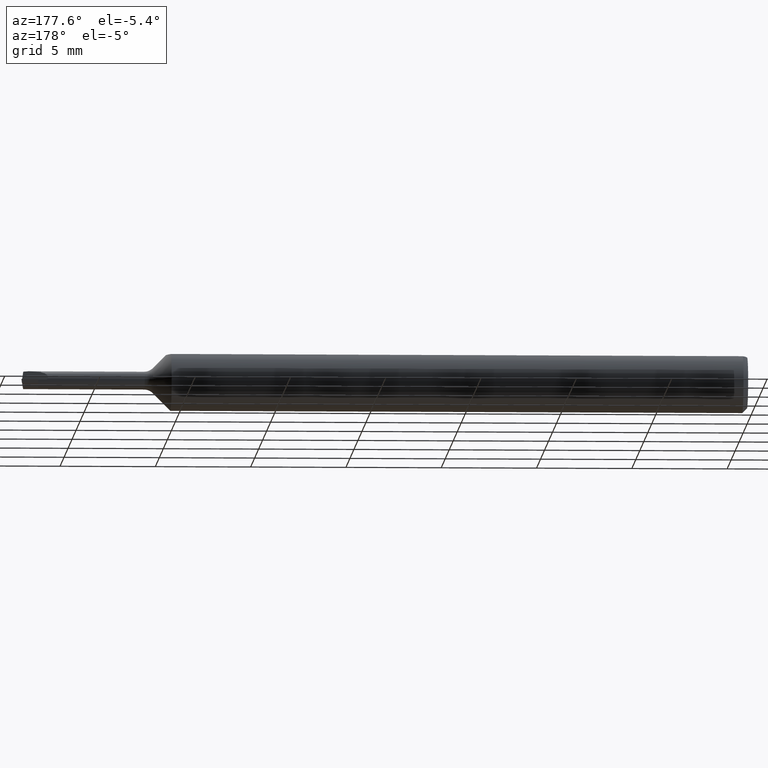
[diagram: clean part render]
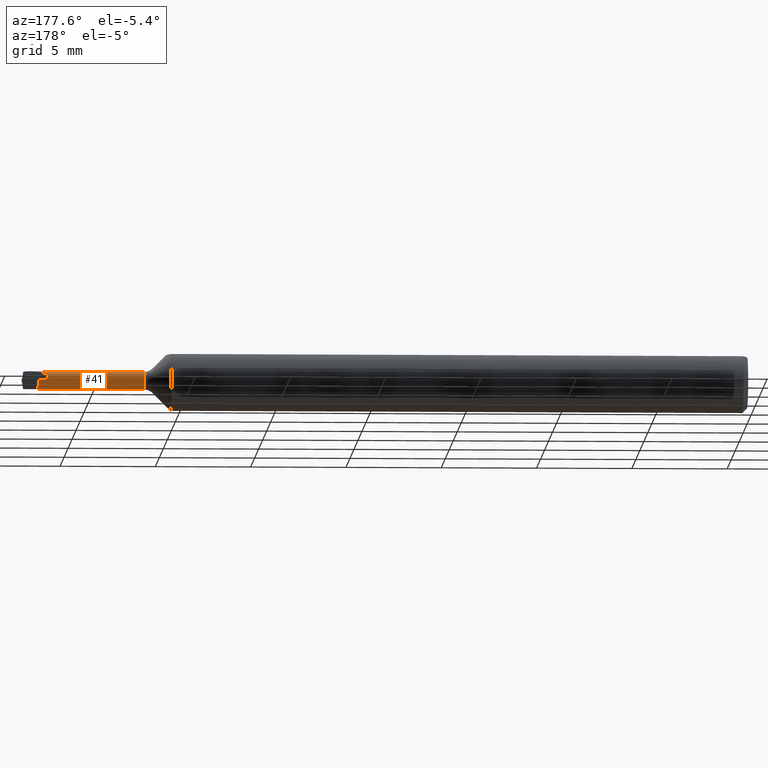
[diagram: same view with one face highlighted and labeled with its STEP entity id]
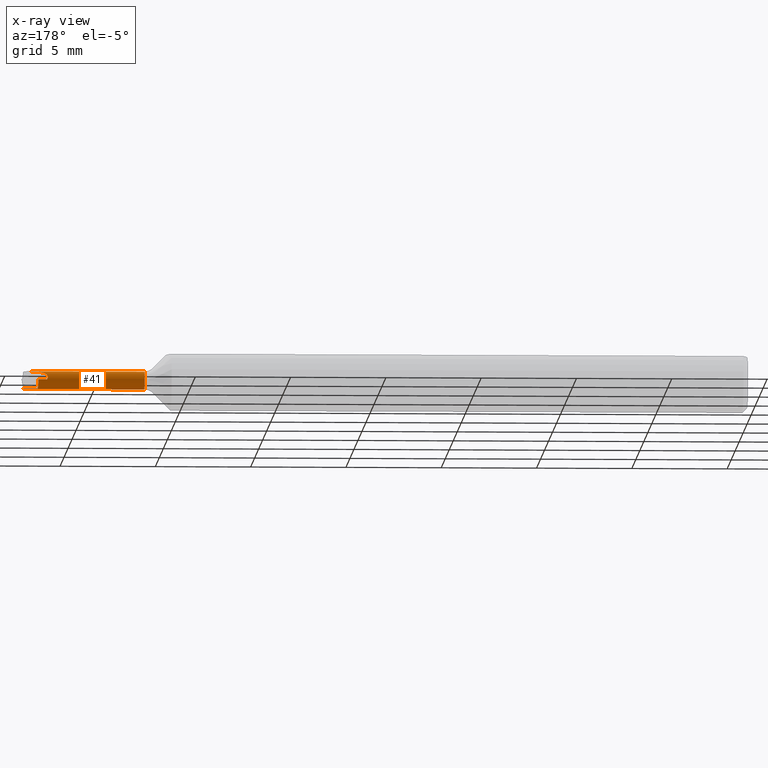
[diagram: x-ray of the same camera — body ghosted, the highlighted face saturated]
A machine part, auxiliary view. The second image highlights one B-rep face of the part: STEP entity #41.
The next image is the same camera in x-ray: the body ghosted, the highlighted face saturated — about 0% of this face is hidden behind the body in this view.
In plain terms, the highlighted cylindrical surface (edge-blend (fillet) strip) has radius 0.4699 mm, axis along (-1, -0, -0).
Its self-contained STEP definition (entity closure, byte-faithful):
#6 = CIRCLE ( 'NONE', #126, 0.01849999999999999908 ) ;
#12 = LINE ( 'NONE', #172, #50 ) ;
#18 = ORIENTED_EDGE ( 'NONE', *, *, #99, .T. ) ;
#19 = CARTESIAN_POINT ( 'NONE',  ( 1.245355339059327493, 0.000000000000000000, 0.000000000000000000 ) ) ;
#21 = EDGE_CURVE ( 'NONE', #289, #505, #49, .T. ) ;
#22 = ORIENTED_EDGE ( 'NONE', *, *, #72, .T. ) ;
#41 = ADVANCED_FACE ( 'NONE', ( #543 ), #400, .T. ) ;
#49 = LINE ( 'NONE', #438, #309 ) ;
#50 = VECTOR ( 'NONE', #102, 39.37007874015748143 ) ;
#72 = EDGE_CURVE ( 'NONE', #582, #630, #560, .T. ) ;
#93 = DIRECTION ( 'NONE',  ( 1.000000000000000000, 0.000000000000000000, 0.000000000000000000 ) ) ;
#96 = CARTESIAN_POINT ( 'NONE',  ( 0.000000000000000000, 0.000000000000000000, 0.000000000000000000 ) ) ;
#99 = EDGE_CURVE ( 'NONE', #237, #289, #296, .T. ) ;
#100 = CARTESIAN_POINT ( 'NONE',  ( 1.495388239854692269, 0.001619057209963981015, -0.01849999999999998521 ) ) ;
#102 = DIRECTION ( 'NONE',  ( -1.000000000000000000, -0.000000000000000000, -0.000000000000000000 ) ) ;
#113 = VERTEX_POINT ( 'NONE', #540 ) ;
#115 = DIRECTION ( 'NONE',  ( 0.000000000000000000, 0.000000000000000000, 1.000000000000000000 ) ) ;
#118 = EDGE_CURVE ( 'NONE', #630, #113, #12, .T. ) ;
#121 = ORIENTED_EDGE ( 'NONE', *, *, #21, .T. ) ;
#125 = EDGE_LOOP ( 'NONE', ( #22, #273, #209, #574, #18, #121, #516, #134 ) ) ;
#126 = AXIS2_PLACEMENT_3D ( 'NONE', #282, #370, #478 ) ;
#134 = ORIENTED_EDGE ( 'NONE', *, *, #234, .F. ) ;
#142 = DIRECTION ( 'NONE',  ( -1.000000000000000000, -0.000000000000000000, -0.000000000000000000 ) ) ;
#148 = CARTESIAN_POINT ( 'NONE',  ( 1.438508876927481195, 0.01849999999999999908, 0.01083704909609776133 ) ) ;
#149 = CARTESIAN_POINT ( 'NONE',  ( 1.483333815684383605, 0.000000000000000000, 0.01849999999999999215 ) ) ;
#172 = CARTESIAN_POINT ( 'NONE',  ( 0.000000000000000000, 2.265596578422602268E-18, -0.01849999999999999215 ) ) ;
#174 = EDGE_CURVE ( 'NONE', #237, #426, #565, .T. ) ;
#186 = DIRECTION ( 'NONE',  ( -1.000000000000000000, -0.000000000000000000, -0.000000000000000000 ) ) ;
#187 = CARTESIAN_POINT ( 'NONE',  ( 1.245355339059327493, 0.000000000000000000, 0.01849999999999998174 ) ) ;
#209 = ORIENTED_EDGE ( 'NONE', *, *, #503, .F. ) ;
#210 = DIRECTION ( 'NONE',  ( -1.000000000000000000, 0.000000000000000000, 0.000000000000000000 ) ) ;
#212 = CARTESIAN_POINT ( 'NONE',  ( 1.560200597524541877, 0.004788152334396648772, -0.01786962778634774984 ) ) ;
#234 = EDGE_CURVE ( 'NONE', #582, #486, #452, .T. ) ;
#237 = VERTEX_POINT ( 'NONE', #506 ) ;
#256 = CARTESIAN_POINT ( 'NONE',  ( 0.000000000000000000, 0.000000000000000000, 0.01849999999999999215 ) ) ;
#260 = AXIS2_PLACEMENT_3D ( 'NONE', #96, #142, #499 ) ;
#270 = CARTESIAN_POINT ( 'NONE',  ( 1.465000000000000080, 0.01849999999999999215, -6.508939666095427711E-17 ) ) ;
#273 = ORIENTED_EDGE ( 'NONE', *, *, #118, .T. ) ;
#282 = CARTESIAN_POINT ( 'NONE',  ( 1.465000000000000080, 0.000000000000000000, 0.000000000000000000 ) ) ;
#289 = VERTEX_POINT ( 'NONE', #356 ) ;
#296 =( BOUNDED_CURVE ( )  B_SPLINE_CURVE ( 3, ( #149, #447, #148, #347 ),
 .UNSPECIFIED., .F., .F. ) 
 B_SPLINE_CURVE_WITH_KNOTS ( ( 4, 4 ),
 ( 4.990162771046300350, 6.560959097841200460 ),
 .UNSPECIFIED. ) 
 CURVE ( )  GEOMETRIC_REPRESENTATION_ITEM ( )  RATIONAL_B_SPLINE_CURVE ( ( 1.000000000000000000, 0.8047378541243641603, 0.8047378541243641603, 1.000000000000000000 ) ) 
 REPRESENTATION_ITEM ( '' )  );
#309 = VECTOR ( 'NONE', #93, 39.37007874015748143 ) ;
#347 = CARTESIAN_POINT ( 'NONE',  ( 1.446998957439701083, 0.01849999999999998521, -4.483286445232968331E-18 ) ) ;
#348 = CARTESIAN_POINT ( 'NONE',  ( 1.495754431199804557, 0.004788152334396648772, -0.01786962778634774984 ) ) ;
#356 = CARTESIAN_POINT ( 'NONE',  ( 1.446998957439701083, 0.01849999999999998521, -4.483286445232968331E-18 ) ) ;
#370 = DIRECTION ( 'NONE',  ( -1.000000000000000000, -0.000000000000000000, -0.000000000000000000 ) ) ;
#388 = VECTOR ( 'NONE', #210, 39.37007874015748143 ) ;
#397 = CARTESIAN_POINT ( 'NONE',  ( 1.495558491035186899, 0.003224263161052951139, -0.01828867062739697111 ) ) ;
#400 = CYLINDRICAL_SURFACE ( 'NONE', #260, 0.01849999999999999215 ) ;
#426 = VERTEX_POINT ( 'NONE', #187 ) ;
#438 = CARTESIAN_POINT ( 'NONE',  ( 2.815371162439451627E-33, 0.01849999999999999215, -6.508939666095427711E-17 ) ) ;
#447 = CARTESIAN_POINT ( 'NONE',  ( 1.453559267999332549, 0.01083704909609770756, 0.01850000000000003031 ) ) ;
#452 = LINE ( 'NONE', #212, #388 ) ;
#453 = DIRECTION ( 'NONE',  ( -1.000000000000000000, -0.000000000000000000, -0.000000000000000000 ) ) ;
#478 = DIRECTION ( 'NONE',  ( 0.000000000000000000, 0.000000000000000000, 1.000000000000000000 ) ) ;
#486 = VERTEX_POINT ( 'NONE', #628 ) ;
#492 = CARTESIAN_POINT ( 'NONE',  ( 1.495246590703220857, 2.265596578422602268E-18, -0.01849999999999999215 ) ) ;
#499 = DIRECTION ( 'NONE',  ( 0.000000000000000000, 0.000000000000000000, 1.000000000000000000 ) ) ;
#503 = EDGE_CURVE ( 'NONE', #426, #113, #563, .T. ) ;
#505 = VERTEX_POINT ( 'NONE', #270 ) ;
#506 = CARTESIAN_POINT ( 'NONE',  ( 1.483333815684383605, 0.000000000000000000, 0.01849999999999999215 ) ) ;
#514 = CARTESIAN_POINT ( 'NONE',  ( 1.495754431199804557, 0.004788152334396648772, -0.01786962778634774984 ) ) ;
#516 = ORIENTED_EDGE ( 'NONE', *, *, #539, .T. ) ;
#530 = VECTOR ( 'NONE', #453, 39.37007874015748143 ) ;
#539 = EDGE_CURVE ( 'NONE', #505, #486, #6, .T. ) ;
#540 = CARTESIAN_POINT ( 'NONE',  ( 1.245355339059327493, 2.265596578422601883E-18, -0.01849999999999998174 ) ) ;
#543 = FACE_OUTER_BOUND ( 'NONE', #125, .T. ) ;
#560 =( BOUNDED_CURVE ( )  B_SPLINE_CURVE ( 3, ( #348, #397, #100, #492 ),
 .UNSPECIFIED., .F., .T. ) 
 B_SPLINE_CURVE_WITH_KNOTS ( ( 4, 4 ),
 ( 5.466285219765468995, 5.728084607564617237 ),
 .UNSPECIFIED. ) 
 CURVE ( )  GEOMETRIC_REPRESENTATION_ITEM ( )  RATIONAL_B_SPLINE_CURVE ( ( 1.000000000000000000, 0.9942965742492069214, 0.9942965742492069214, 1.000000000000000000 ) ) 
 REPRESENTATION_ITEM ( '' )  );
#563 = CIRCLE ( 'NONE', #605, 0.01849999999999998174 ) ;
#565 = LINE ( 'NONE', #256, #530 ) ;
#574 = ORIENTED_EDGE ( 'NONE', *, *, #174, .F. ) ;
#582 = VERTEX_POINT ( 'NONE', #514 ) ;
#605 = AXIS2_PLACEMENT_3D ( 'NONE', #19, #186, #115 ) ;
#628 = CARTESIAN_POINT ( 'NONE',  ( 1.465000000000000080, 0.004788152334396648772, -0.01786962778634774984 ) ) ;
#630 = VERTEX_POINT ( 'NONE', #636 ) ;
#636 = CARTESIAN_POINT ( 'NONE',  ( 1.495246590703220857, 2.265596578422602268E-18, -0.01849999999999999215 ) ) ;